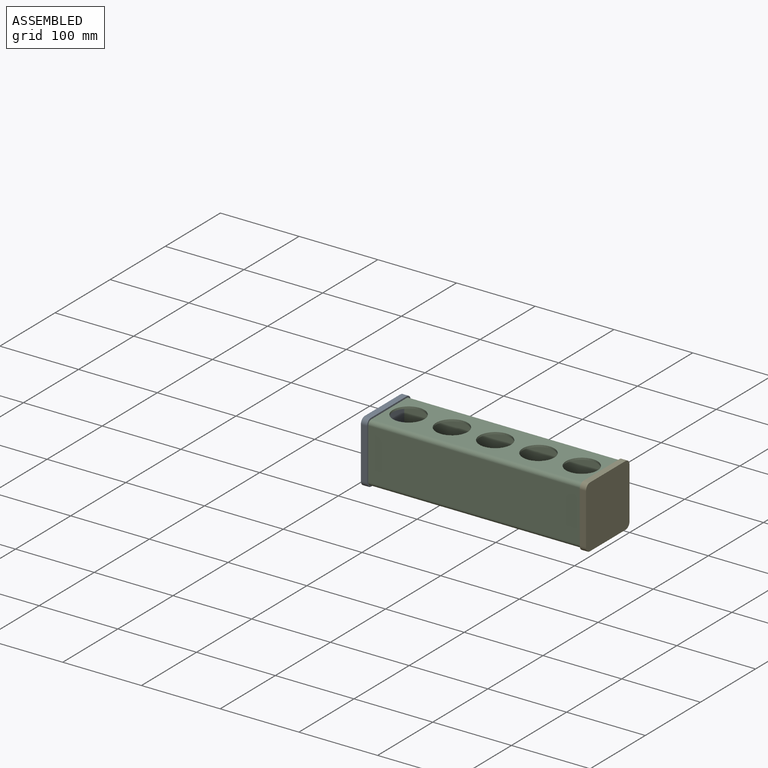
[diagram: assembled view]
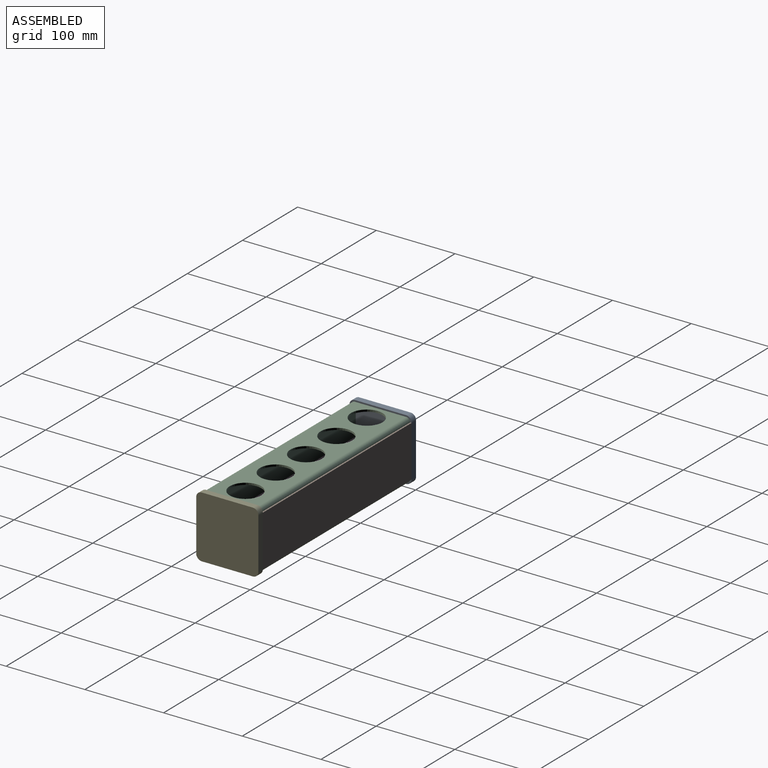
[diagram: assembled view, second angle]
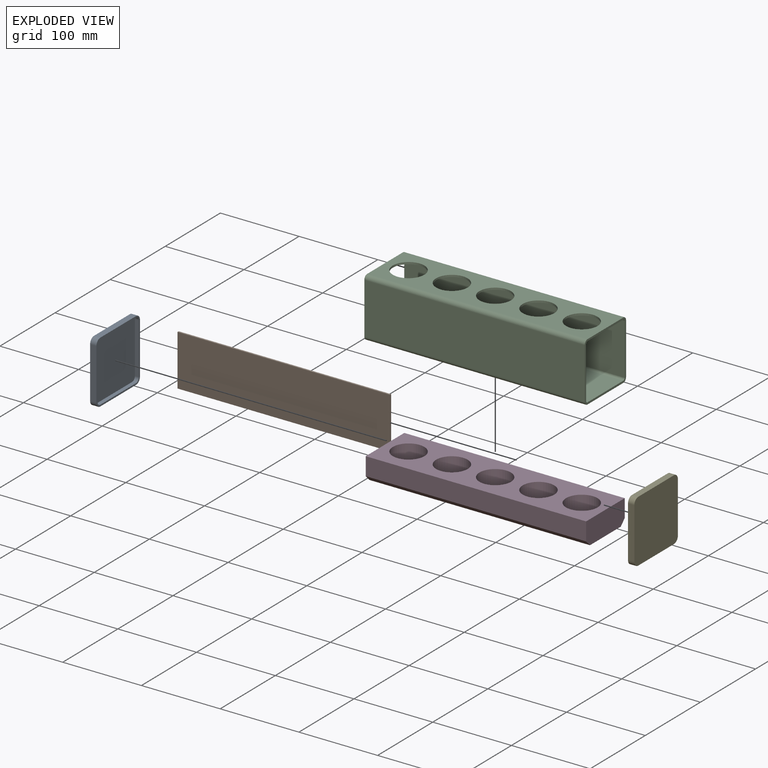
[diagram: exploded view]
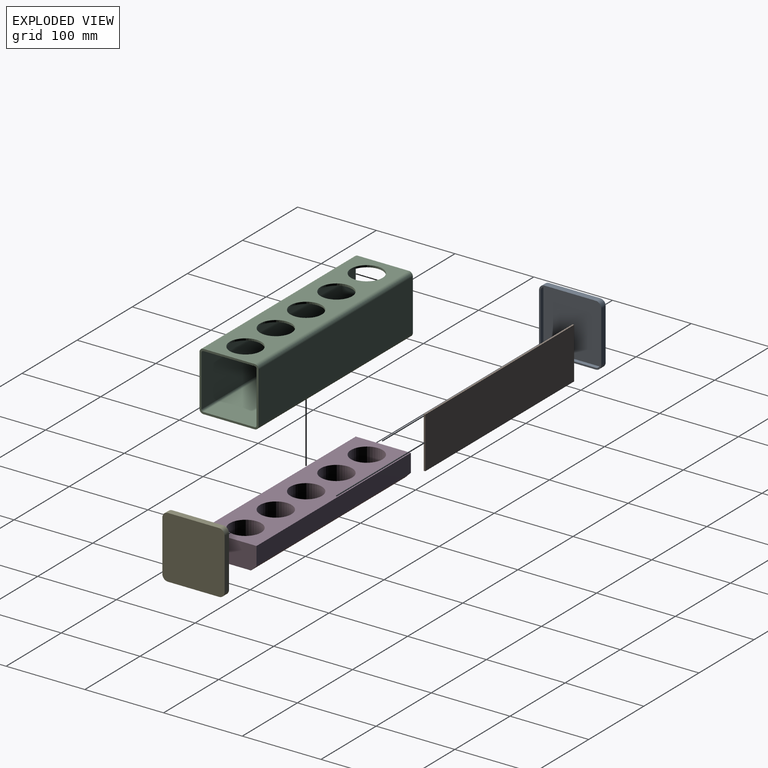
[diagram: exploded view, second angle]
ASSEMBLY  parts=5 mates=4
PART A: 19 faces, bbox 8x79x79 mm
  f0: cylinder r=7mm len=8mm, axis (-1,0,0), area 88mm2, adj f1,f15,f16,f18
  f1: plane 65x8mm, normal (0,-1,0), area 520mm2, adj f0,f2,f16,f18
  f2: cylinder r=7mm len=8mm, axis (-1,0,0), area 88mm2, adj f1,f3,f16,f18
  f3: plane 65x8mm, normal (0,0,-1), area 520mm2, adj f2,f4,f16,f18
  f4: cylinder r=7mm len=8mm, axis (-1,0,0), area 88mm2, adj f3,f5,f16,f18
  f5: plane 65x8mm, normal (0,1,0), area 520mm2, adj f4,f6,f16,f18
  f6: cylinder r=7mm len=8mm, axis (-1,0,0), area 88mm2, adj f5,f15,f16,f18
  f7: cylinder r=5mm len=5mm, axis (-1,0,0), area 39.3mm2, adj f8,f14,f16,f17
  f8: plane 65x5mm, normal (0,1,0), area 325mm2, adj f7,f9,f16,f17
  f9: cylinder r=5mm len=5mm, axis (-1,0,0), area 39.3mm2, adj f8,f10,f16,f17
  f10: plane 65x5mm, normal (0,0,-1), area 325mm2, adj f9,f11,f16,f17
  f11: cylinder r=5mm len=5mm, axis (-1,0,0), area 39.3mm2, adj f10,f12,f16,f17
  f12: plane 65x5mm, normal (0,-1,0), area 325mm2, adj f11,f13,f16,f17
  f13: cylinder r=5mm len=5mm, axis (-1,0,0), area 39.3mm2, adj f12,f14,f16,f17
  f14: plane 65x5mm, normal (0,0,1), area 325mm2, adj f7,f13,f16,f17
  f15: plane 65x8mm, normal (0,0,1), area 520mm2, adj f0,f6,f16,f18
  f16: plane 79x79mm, normal (1,0,0), area 595.4mm2, adj f0,f1,f2,f3,f4,f5,f6,f7
  f17: plane 75x75mm, normal (1,0,0), area 5603.5mm2, adj f7,f8,f9,f10,f11,f12,f13,f14
  f18: plane 79x79mm, normal (-1,0,0), area 6198.9mm2, adj f0,f1,f2,f3,f4,f5,f6,f15
PART B: 6 faces, bbox 270x2x65 mm
  f0: plane 65x2mm, normal (1,0,0), area 130mm2, adj f1,f3,f4,f5
  f1: plane 270x2mm, normal (0,0,-1), area 540mm2, adj f0,f2,f4,f5
  f2: plane 65x2mm, normal (-1,0,0), area 130mm2, adj f1,f3,f4,f5
  f3: plane 270x2mm, normal (0,0,1), area 540mm2, adj f0,f2,f4,f5
  f4: plane 270x65mm, normal (0,1,0), area 17550mm2, adj f0,f1,f2,f3
  f5: plane 270x65mm, normal (0,-1,0), area 17550mm2, adj f0,f1,f2,f3
PART C: 23 faces, bbox 280x75x75 mm
  f0: plane 75x75mm, normal (1,0,0), area 708.9mm2, adj f2,f3,f4,f5,f6,f7,f8,f9
  f1: plane 75x75mm, normal (-1,0,0), area 708.9mm2, adj f2,f3,f4,f5,f6,f7,f8,f9
  f2: plane 280x65mm, normal (0,-1,0), area 18200mm2, adj f0,f1,f6,f9
  f3: plane 280x65mm, normal (0,0,-1), area 18200mm2, adj f0,f1,f6,f7
  f4: plane 280x65mm, normal (0,1,0), area 18200mm2, adj f0,f1,f7,f8
  f5: plane 280x65mm, normal (0,0,1), area 11916.8mm2, adj f0,f1,f8,f9,f18,f19,f20,f21
  f6: cylinder r=5mm len=280mm, axis (1,0,0), area 2199.1mm2, adj f0,f1,f2,f3
  f7: cylinder r=5mm len=280mm, axis (-1,0,0), area 2199.1mm2, adj f0,f1,f3,f4
  f8: cylinder r=5mm len=280mm, axis (1,0,0), area 2199.1mm2, adj f0,f1,f4,f5
  f9: cylinder r=5mm len=280mm, axis (-1,0,0), area 2199.1mm2, adj f0,f1,f2,f5
  f10: plane 280x65mm, normal (0,1,0), area 18200mm2, adj f0,f1,f14,f17
  f11: plane 280x65mm, normal (0,0,1), area 18200mm2, adj f0,f1,f14,f15
  f12: plane 280x65mm, normal (0,-1,0), area 18200mm2, adj f0,f1,f15,f16
  f13: plane 280x65mm, normal (0,0,-1), area 11916.8mm2, adj f0,f1,f16,f17,f18,f19,f20,f21
  f14: cylinder r=2.5mm len=280mm, axis (1,0,0), area 1099.6mm2, adj f0,f1,f10,f11
  f15: cylinder r=2.5mm len=280mm, axis (-1,0,0), area 1099.6mm2, adj f0,f1,f11,f12
  f16: cylinder r=2.5mm len=280mm, axis (1,0,0), area 1099.6mm2, adj f0,f1,f12,f13
  f17: cylinder r=2.5mm len=280mm, axis (-1,0,0), area 1099.6mm2, adj f0,f1,f10,f13
  f18: cylinder r=20mm len=40mm, axis (0,0,1), area 314.2mm2, adj f5,f13
  f19: cylinder r=20mm len=40mm, axis (0,0,1), area 314.2mm2, adj f5,f13
  f20: cylinder r=20mm len=40mm, axis (0,0,1), area 314.2mm2, adj f5,f13
  f21: cylinder r=20mm len=40mm, axis (0,0,1), area 314.2mm2, adj f5,f13
  f22: cylinder r=20mm len=40mm, axis (0,0,1), area 314.2mm2, adj f5,f13
PART D: 18 faces, bbox 280x70x30 mm
  f0: plane 280x70mm, normal (0,0,1), area 13316.8mm2, adj f1,f5,f6,f7,f8,f10,f12,f14
  f1: plane 280x22.93mm, normal (0,-1,0), area 6420.1mm2, adj f0,f2,f6,f7
  f2: plane 280x7.07mm, normal (0,-0.71,-0.71), area 2800mm2, adj f1,f3,f6,f7
  f3: plane 280x55.86mm, normal (0,0,-1), area 15640.2mm2, adj f2,f4,f6,f7
  f4: plane 280x7.07mm, normal (0,0.71,-0.71), area 2800mm2, adj f3,f5,f6,f7
  f5: plane 280x22.93mm, normal (0,1,0), area 6420.1mm2, adj f0,f4,f6,f7
  f6: plane 70x30mm, normal (-1,0,0), area 2050mm2, adj f0,f1,f2,f3,f4,f5
  f7: plane 70x30mm, normal (1,0,0), area 2050mm2, adj f0,f1,f2,f3,f4,f5
  f8: cylinder r=20mm len=40mm, axis (0,0,1), area 3455.8mm2, adj f0,f9
  f9: plane 40x40mm, normal (0,0,1), area 1256.6mm2, adj f8
  f10: cylinder r=20mm len=40mm, axis (0,0,1), area 3455.8mm2, adj f0,f11
  f11: plane 40x40mm, normal (0,0,1), area 1256.6mm2, adj f10
  f12: cylinder r=20mm len=40mm, axis (0,0,1), area 3455.8mm2, adj f0,f13
  f13: plane 40x40mm, normal (0,0,1), area 1256.6mm2, adj f12
  f14: cylinder r=20mm len=40mm, axis (0,0,1), area 3455.8mm2, adj f0,f15
  f15: plane 40x40mm, normal (0,0,1), area 1256.6mm2, adj f14
  f16: cylinder r=20mm len=40mm, axis (0,0,1), area 3455.8mm2, adj f0,f17
  f17: plane 40x40mm, normal (0,0,1), area 1256.6mm2, adj f16
PART E: 19 faces, bbox 8x79x79 mm
  f0: cylinder r=7mm len=8mm, axis (1,0,0), area 88mm2, adj f1,f15,f16,f18
  f1: plane 65x8mm, normal (0,-1,0), area 520mm2, adj f0,f2,f16,f18
  f2: cylinder r=7mm len=8mm, axis (1,0,0), area 88mm2, adj f1,f3,f16,f18
  f3: plane 65x8mm, normal (0,0,-1), area 520mm2, adj f2,f4,f16,f18
  f4: cylinder r=7mm len=8mm, axis (1,0,0), area 88mm2, adj f3,f5,f16,f18
  f5: plane 65x8mm, normal (0,1,0), area 520mm2, adj f4,f6,f16,f18
  f6: cylinder r=7mm len=8mm, axis (1,0,0), area 88mm2, adj f5,f15,f16,f18
  f7: cylinder r=5mm len=5mm, axis (1,0,0), area 39.3mm2, adj f8,f14,f16,f17
  f8: plane 65x5mm, normal (0,1,0), area 325mm2, adj f7,f9,f16,f17
  f9: cylinder r=5mm len=5mm, axis (1,0,0), area 39.3mm2, adj f8,f10,f16,f17
  f10: plane 65x5mm, normal (0,0,-1), area 325mm2, adj f9,f11,f16,f17
  f11: cylinder r=5mm len=5mm, axis (1,0,0), area 39.3mm2, adj f10,f12,f16,f17
  f12: plane 65x5mm, normal (0,-1,0), area 325mm2, adj f11,f13,f16,f17
  f13: cylinder r=5mm len=5mm, axis (1,0,0), area 39.3mm2, adj f12,f14,f16,f17
  f14: plane 65x5mm, normal (0,0,1), area 325mm2, adj f7,f13,f16,f17
  f15: plane 65x8mm, normal (0,0,1), area 520mm2, adj f0,f6,f16,f18
  f16: plane 79x79mm, normal (-1,0,0), area 595.4mm2, adj f0,f1,f2,f3,f4,f5,f6,f7
  f17: plane 75x75mm, normal (-1,0,0), area 5603.5mm2, adj f7,f8,f9,f10,f11,f12,f13,f14
  f18: plane 79x79mm, normal (1,0,0), area 6198.9mm2, adj f0,f1,f2,f3,f4,f5,f6,f15
PLACE A t=(-0.98,0.38,1.43)mm
PLACE B t=(-0.98,0.38,1.43)mm
PLACE C t=(-0.98,0.38,1.43)mm fixed
PLACE D t=(-0.98,0.38,1.43)mm
PLACE E t=(-0.98,0.38,1.43)mm
MATE fastened B.f2 <-> A.f16  axis (-1,0,0) through (-135.98,39.88,1.43)mm
MATE fastened E.f10 <-> C.f5  axis (0,0,-1) through (139.02,0.38,38.93)mm
MATE fastened D.f3 <-> C.f11  axis (0,0,-1) through (139.02,0.38,-33.57)mm
MATE fastened B.f0 <-> E.f16  axis (1,0,0) through (134.02,39.88,1.43)mm
